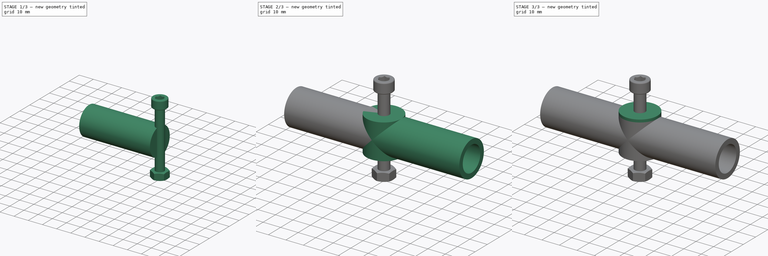
[diagram: build sequence overview — one tinted view per stage of 3, left to right]
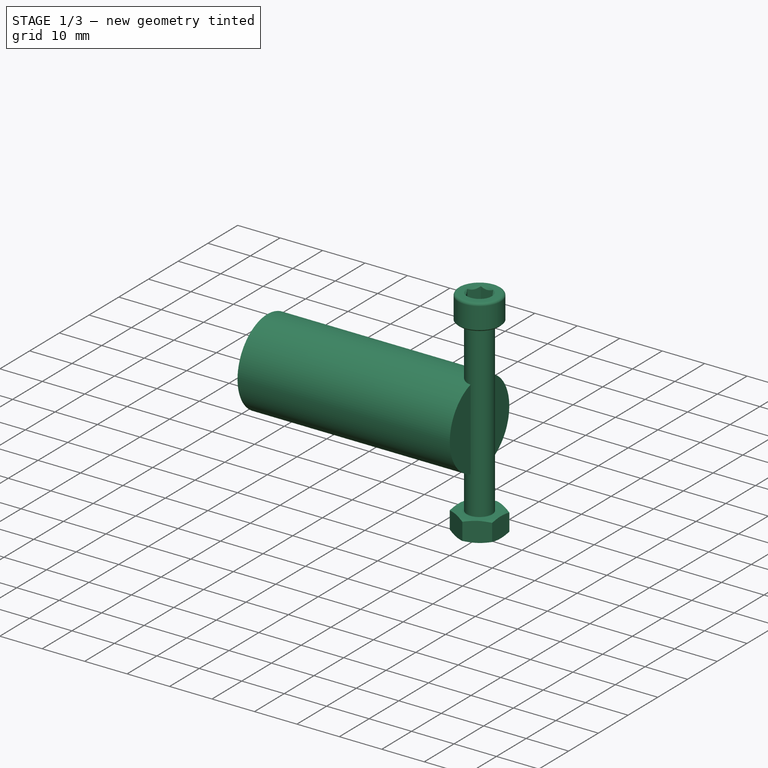
[diagram: stage 1 of 3 — iso view after this stage's code; geometry added in this stage tinted green]
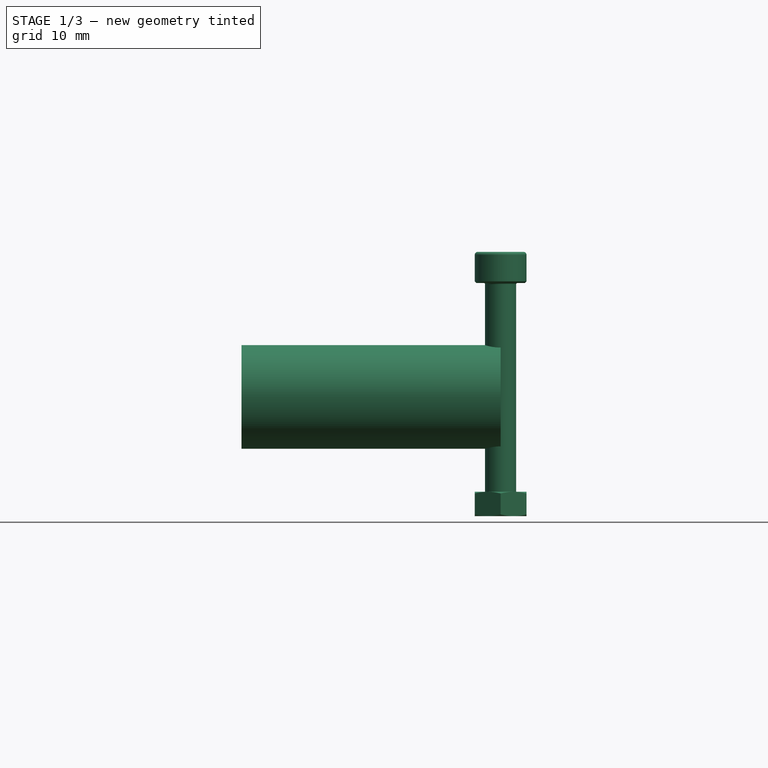
[diagram: stage 1 of 3 — front view after this stage's code; geometry added in this stage tinted green]
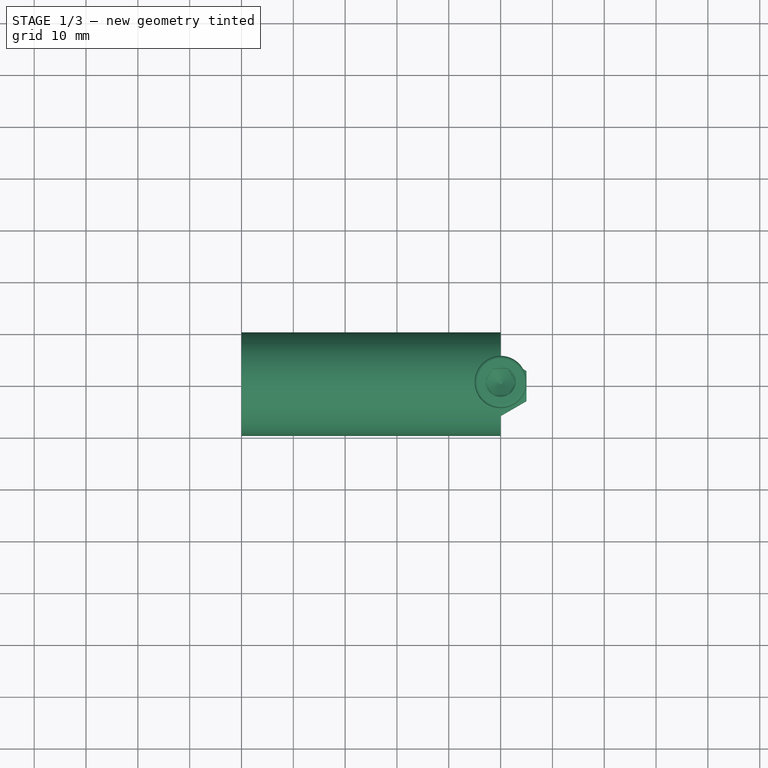
[diagram: stage 1 of 3 — top view after this stage's code; geometry added in this stage tinted green]
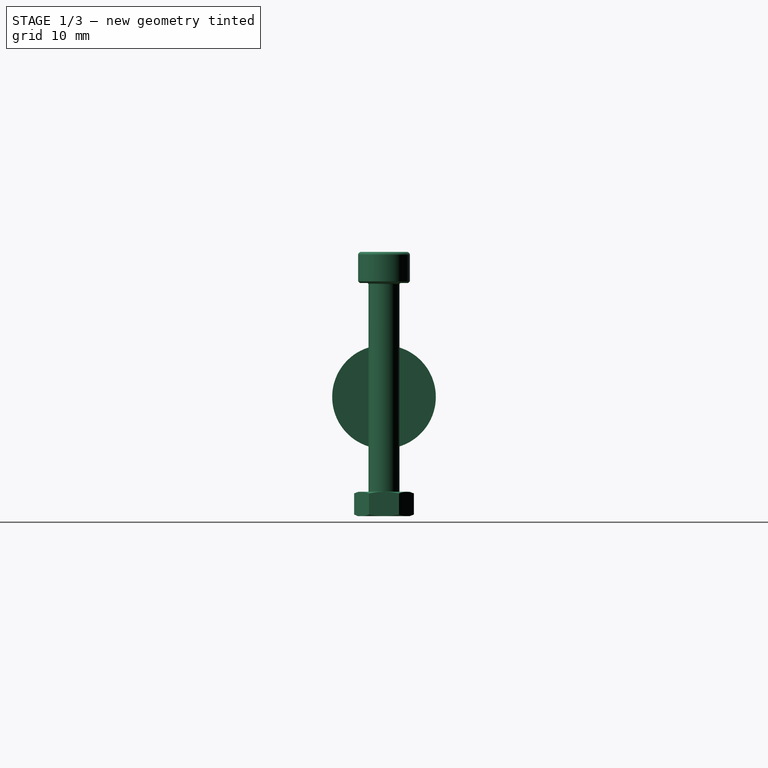
[diagram: stage 1 of 3 — right view after this stage's code; geometry added in this stage tinted green]
FCSTD DOCUMENT  (FreeCAD 0.20R)
Label: tancarville_endFCStd
License: All rights reserved
LicenseURL: http://en.wikipedia.org/wiki/All_rights_reserved
objects: Sketcher::SketchObject×3, App::DocumentObjectGroup×3, PartDesign::Pad×2, PartDesign::CoordinateSystem×2, App::Link×2, Part::FeaturePython×2, PartDesign::Revolution×1, PartDesign::Mirrored×1, PartDesign::Hole×1, PartDesign::Pocket×1, App::FeaturePython×1, PartDesign::Body×1, App::Part×1
note: 19 computed .brp shape members not serialized (recipe doc carries the construction recipe); baked Part::Feature solids carry a one-line shape summary decoded from their .brp

FEATURE [Sketcher::SketchObject] Sketch
  FullyConstrained = true
  MapMode = 5
  Support = -> [XY_Plane]
  sketch-geometry (6):
    g0: LineSegment StartX=-13.5 StartY=0 StartZ=0 EndX=-13.5 EndY=6.9 EndZ=0
    g1: LineSegment StartX=-13.5 StartY=6.9 StartZ=0 EndX=-50 EndY=7.2 EndZ=0
    g2: LineSegment StartX=-50 StartY=7.2 StartZ=0 EndX=-50 EndY=10 EndZ=0
    g3: LineSegment StartX=-50 StartY=10 StartZ=0 EndX=0 EndY=10 EndZ=0
    g4: LineSegment StartX=0 StartY=10 StartZ=0 EndX=0 EndY=0 EndZ=0
    g5: LineSegment StartX=0 StartY=0 StartZ=0 EndX=-13.5 EndY=0 EndZ=0
  constraints (17):
    c: PointOnObject(g0,g-1)
    c: Vertical(g0)
    c: Coincident(g0,g1)
    c: Coincident(g1,g2)
    c: Vertical(g2)
    c: Coincident(g2,g3)
    c: PointOnObject(g3,g-2)
    c: Horizontal(g3)
    c: Coincident(g3,g4)
    c: Coincident(g4,g-1)
    c: Coincident(g4,g5)
    c: Coincident(g5,g0)
    c: DistanceX(g3,g3) = 50
    c: DistanceY(g0,g1) = 7.2
    c: DistanceY(g0,g0) = 6.9
    c: DistanceY(g4,g4) = 10
    c: DistanceX(g5,g5) = 13.5
FEATURE [PartDesign::Revolution] Revolution
  Angle = 360
  Axis = (1,0,0)
  Base = (0,0,0)
  Profile = -> Sketch
  ReferenceAxis = -> Sketch [H_Axis]
FEATURE [PartDesign::CoordinateSystem] LCS_Origin
  AttacherType = Attacher::AttachEngine3D
  MapMode = 2
  Support = -> [X_Axis001]
FEATURE [App::DocumentObjectGroup] Constraints
FEATURE [App::FeaturePython] Variables  # WARN: FeaturePython — macro-defined, semantics opaque (R4)
  Type = App::PropertyContainer
FEATURE [App::DocumentObjectGroup] Configurations
FEATURE [PartDesign::CoordinateSystem] Local_CS
  AttacherType = Attacher::AttachEngine3D
  MapMode = 11
  Placement = pos=(0,0,11.5) rot=(0,0,1;1.5708rad)
  Support = -> [Pad001]
FEATURE [PartDesign::Body] Body
  Group = -> [Sketch,Revolution,Mirrored,Sketch001,Pad,Hole,Sketch002,Pocket,Pad001,Local_CS]
  Origin = -> Origin
  Tip = -> Pad001
FEATURE [App::DocumentObjectGroup] Parts
  Group = -> [Body]
FEATURE [App::Link] Body001  label="Bot_end"
  AttachedBy = #Local_CS
  AttachedTo = Parent Assembly#LCS_Origin
  LinkPlacement = pos=(0,0,-11.5) rot=(0,0,-1;1.5708rad)
  LinkedObject = -> Body
  Placement = pos=(0,0,-11.5) rot=(0,0,-1;1.5708rad)
  SolverId = Asm4EE
  expr: Placement = LCS_Origin.Placement * AttachmentOffset * Local_CS.Placement ^ -1
FEATURE [App::Link] Body002  label="Top_end"
  AttachedBy = #Local_CS
  AttachedTo = Body001#Local_CS
  AttachmentOffset = pos=(0,0,0) rot=(0.707107,0.707107,0;3.14159rad)
  LinkPlacement = pos=(-1.4e-15,0,11.5) rot=(0,1,0;3.14159rad)
  LinkedObject = -> Body
  Placement = pos=(-1.4e-15,0,11.5) rot=(0,1,0;3.14159rad)
  SolverId = Asm4EE
  expr: Placement = Body001.Placement * Local_CS.Placement * AttachmentOffset * Local_CS.Placement ^ -1
FEATURE [Part::FeaturePython] Screw  label="M6x45-Screw"  # Fasteners workbench fastener (typed FeaturePython)
  Placement = pos=(0,0,22) rot=(0,0,1;0rad)
  diameter = 7
  invert = false
  leftHanded = false
  length = 10
  lengthCustom = 45
  matchOuter = false
  offset = 0
  thread = false
  type = 47
FEATURE [Part::FeaturePython] Nut  label="M6-Nut"  # Fasteners workbench fastener (typed FeaturePython)
  Placement = pos=(0,0,-23) rot=(0,0,1;5.75959rad)
  diameter = 8
  invert = false
  leftHanded = false
  matchOuter = false
  offset = 0
  thread = false
  type = 24
FEATURE [App::Part] Assembly
  AssemblyType = Part::Link
  Group = -> [LCS_Origin,Constraints,Variables,Configurations,Body001,Body002,Screw,Nut]
  Origin = -> Origin001
  Type = Assembly
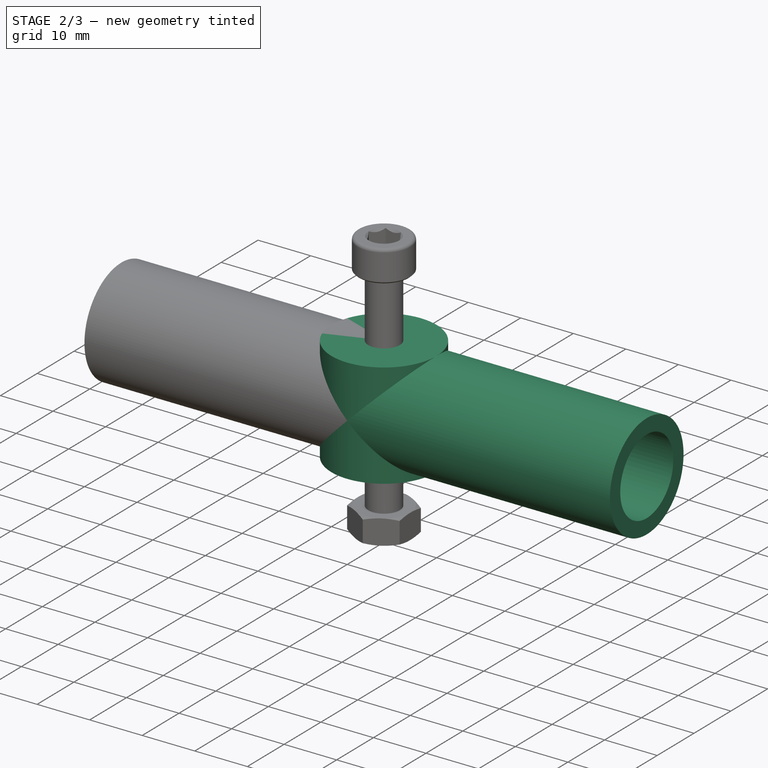
[diagram: stage 2 of 3 — iso view after this stage's code; geometry added in this stage tinted green]
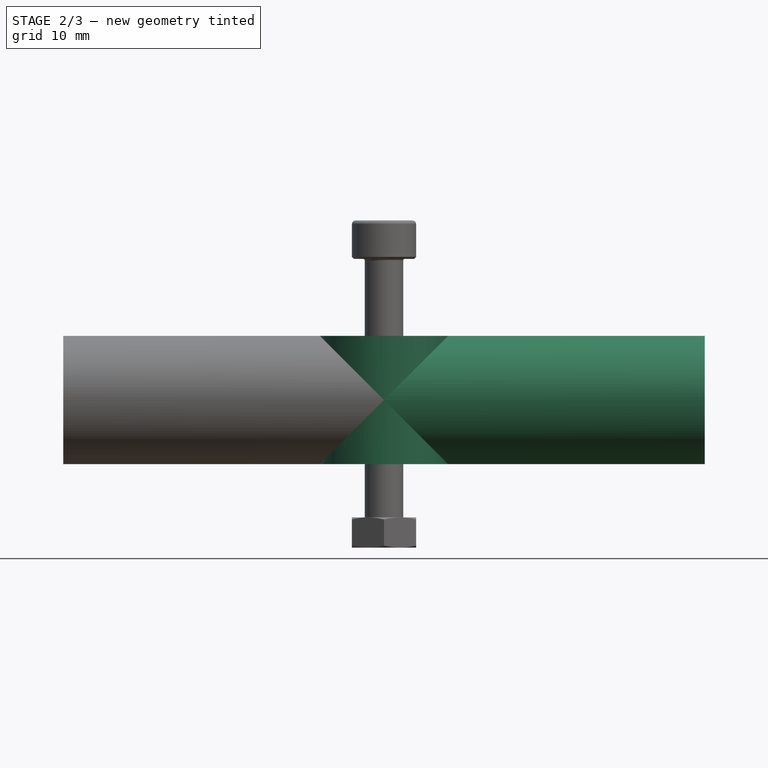
[diagram: stage 2 of 3 — front view after this stage's code; geometry added in this stage tinted green]
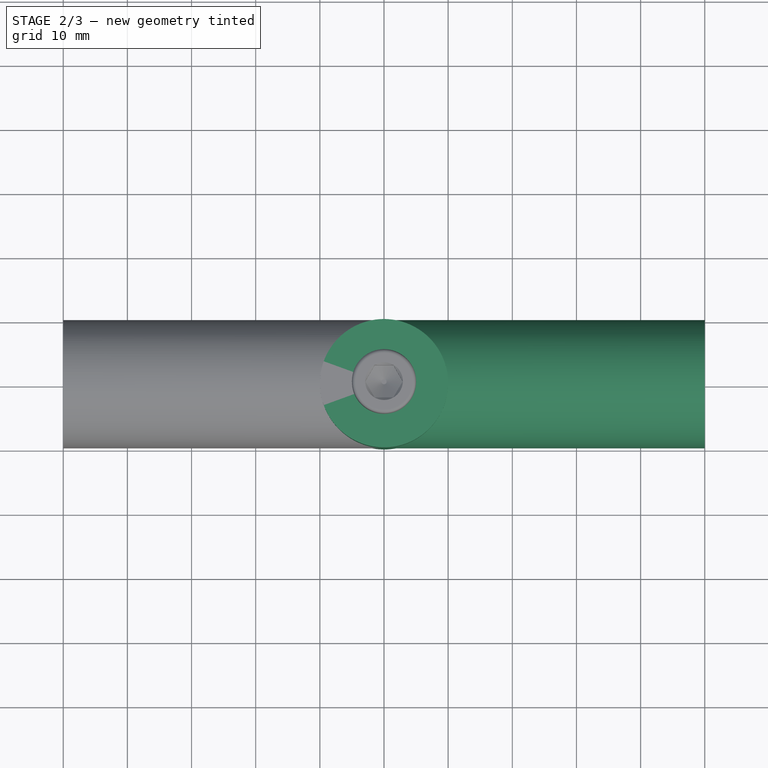
[diagram: stage 2 of 3 — top view after this stage's code; geometry added in this stage tinted green]
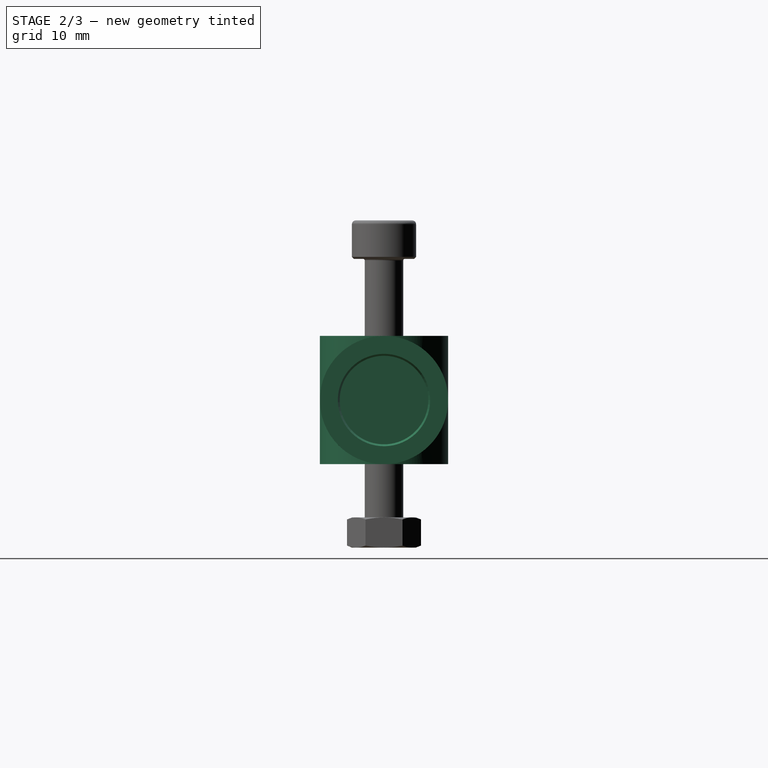
[diagram: stage 2 of 3 — right view after this stage's code; geometry added in this stage tinted green]
FEATURE [PartDesign::Mirrored] Mirrored
  BaseFeature = -> Revolution
  MirrorPlane = -> Sketch [V_Axis]
  Originals = -> [Revolution]
FEATURE [Sketcher::SketchObject] Sketch001
  FullyConstrained = true
  MapMode = 5
  Support = -> [XY_Plane]
  sketch-geometry (1):
    g0: Circle CenterX=0 CenterY=0 CenterZ=0 NormalX=0 NormalY=0 NormalZ=1 AngleXU=0 Radius=10
  constraints (2):
    c: Coincident(g0,g-1)
    c: Diameter(g0) = 20
FEATURE [PartDesign::Pad] Pad
  BaseFeature = -> Mirrored
  Direction = (0,0,1)
  Length = 20
  Length2 = 10
  Midplane = true
  Profile = -> Sketch001
  ReferenceAxis = -> Sketch001 [N_Axis]
  Type = 0
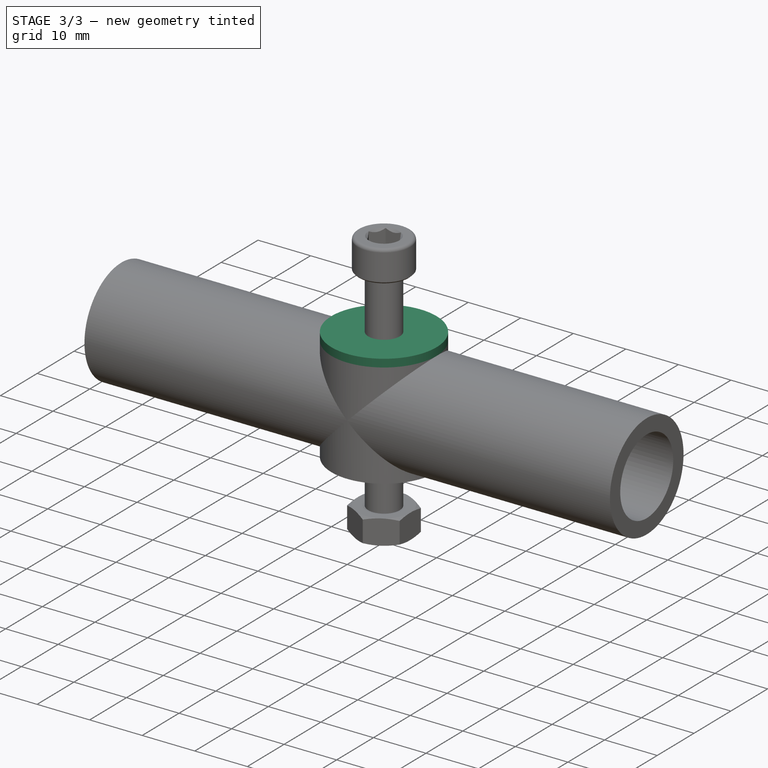
[diagram: stage 3 of 3 — iso view after this stage's code; geometry added in this stage tinted green]
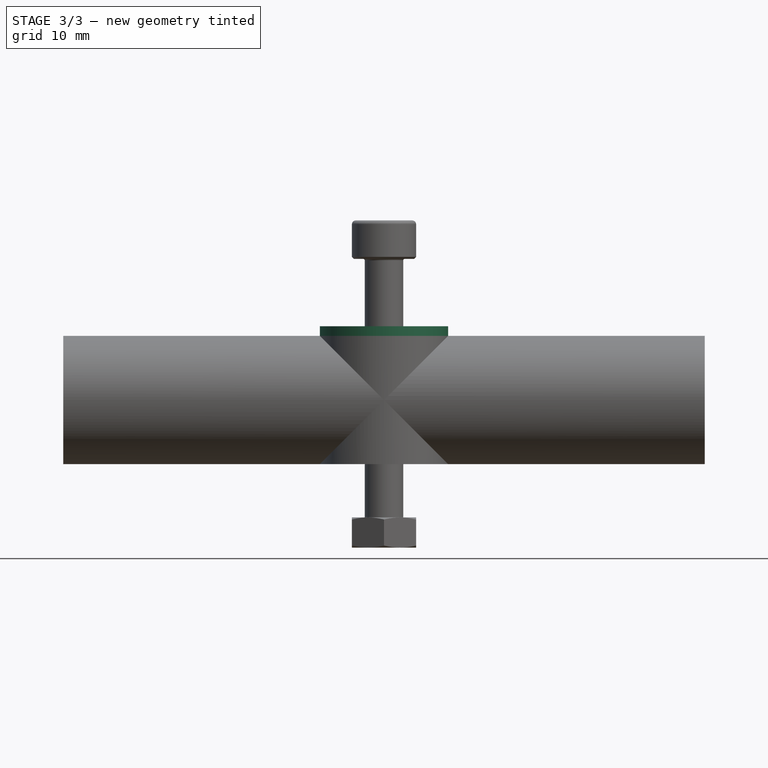
[diagram: stage 3 of 3 — front view after this stage's code; geometry added in this stage tinted green]
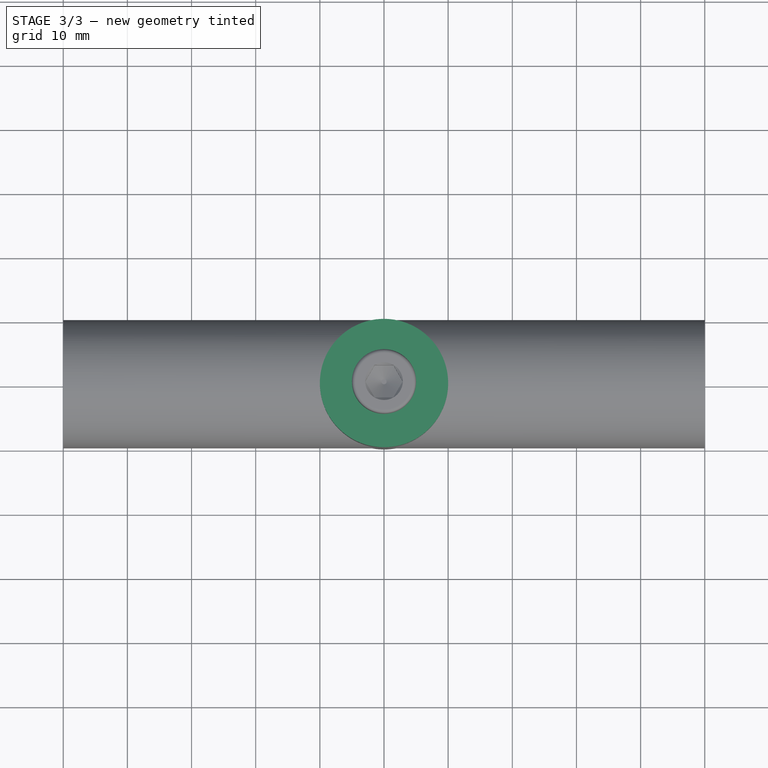
[diagram: stage 3 of 3 — top view after this stage's code; geometry added in this stage tinted green]
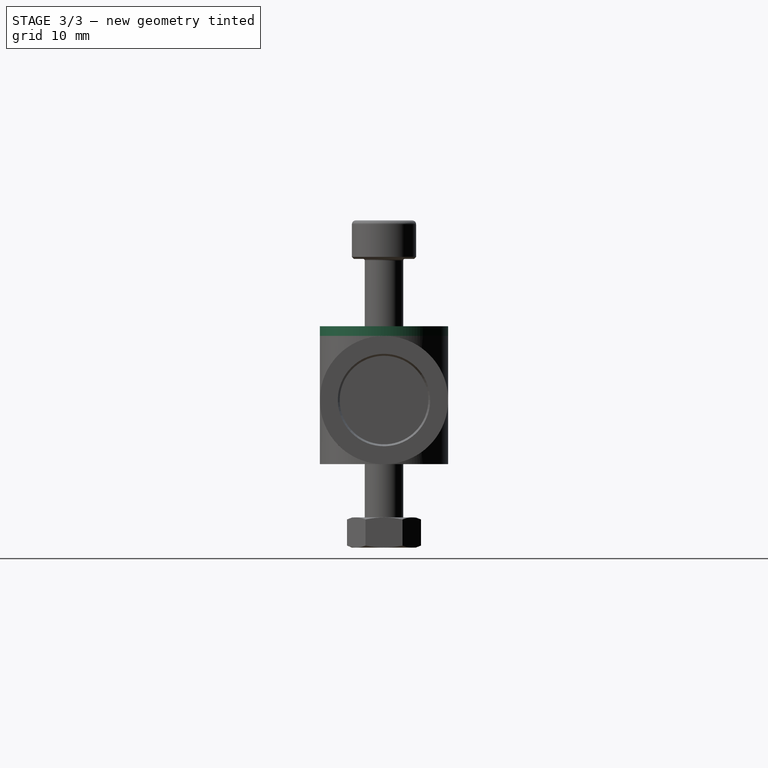
[diagram: stage 3 of 3 — right view after this stage's code; geometry added in this stage tinted green]
FEATURE [PartDesign::Hole] Hole
  BaseFeature = -> Pad
  CustomThreadClearance = 0
  Depth = 209.925
  DepthType = 1
  Diameter = 6
  DrillForDepth = false
  DrillPoint = 1
  DrillPointAngle = 118
  HoleCutCountersinkAngle = 90
  HoleCutCustomValues = false
  HoleCutDepth = 0
  HoleCutDiameter = 6.1
  HoleCutType = 0
  ModelThread = false
  Profile = -> Pad [Face11,Face10]
  Tapered = false
  TaperedAngle = 90
  ThreadClass = 0
  ThreadDepth = 209.925
  ThreadDepthType = 0
  ThreadDirection = 0
  ThreadFit = 0
  ThreadSize = 0
  ThreadType = 0
  Threaded = false
  UseCustomThreadClearance = false
FEATURE [Sketcher::SketchObject] Sketch002
  FullyConstrained = true
  MapMode = 5
  Placement = pos=(0,0,-10) rot=(1,0,0;3.14159rad)
  Support = -> [Hole]
  sketch-geometry (7):
    g0: LineSegment StartX=5.7735 StartY=0 StartZ=0 EndX=2.88675 EndY=5 EndZ=0
    g1: LineSegment StartX=2.88675 StartY=5 StartZ=0 EndX=-2.88675 EndY=5 EndZ=0
    g2: LineSegment StartX=-2.88675 StartY=5 StartZ=0 EndX=-5.7735 EndY=0 EndZ=0
    g3: LineSegment StartX=-5.7735 StartY=-1e-16 StartZ=0 EndX=-2.88675 EndY=-5 EndZ=0
    g4: LineSegment StartX=-2.88675 StartY=-5 StartZ=0 EndX=2.88675 EndY=-5 EndZ=0
    g5: LineSegment StartX=2.88675 StartY=-5 StartZ=0 EndX=5.7735 EndY=0 EndZ=0
    g6: Circle CenterX=0 CenterY=0 CenterZ=0 NormalX=0 NormalY=0 NormalZ=1 AngleXU=0 Radius=5.7735
  constraints (16):
    c: Coincident(g0,g1)
    c: Coincident(g1,g2)
    c: Coincident(g2,g3)
    c: Coincident(g3,g4)
    c: Coincident(g4,g5)
    c: Coincident(g5,g0)
    c: Equal(g0, g1-g5) x5
    c: PointOnObject(g0,g6)
    c: PointOnObject(g1,g6)
    c: PointOnObject(g2,g6)
    c: PointOnObject(g3,g6)
    c: PointOnObject(g4,g6)
    c: PointOnObject(g5,g6)
    c: Coincident(g6,g-1)
    c: PointOnObject(g5,g-1)
    c: Distance(g2,g0) = 10
FEATURE [PartDesign::Pocket] Pocket
  BaseFeature = -> Hole
  Direction = (0,0,1)
  Length = 3
  Length2 = 5
  Profile = -> Sketch002
  ReferenceAxis = -> Sketch002 [N_Axis]
  Type = 0
FEATURE [PartDesign::Pad] Pad001
  BaseFeature = -> Pocket
  Direction = (0,0,1)
  Length = 1.5
  Length2 = 10
  Profile = -> Pocket [Face11,Face10]
  Type = 0
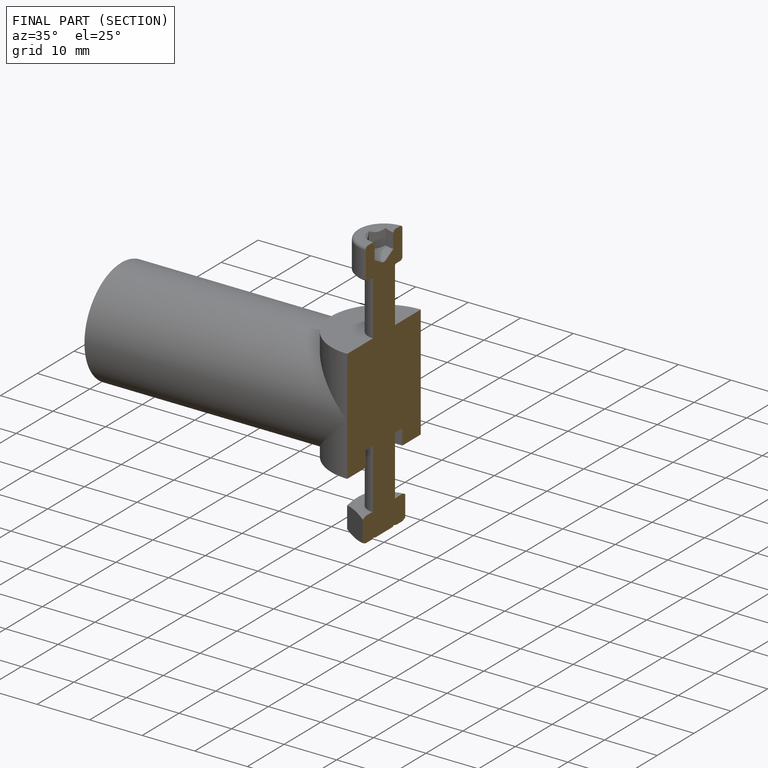
[diagram: finished part — half-section view (interior)]
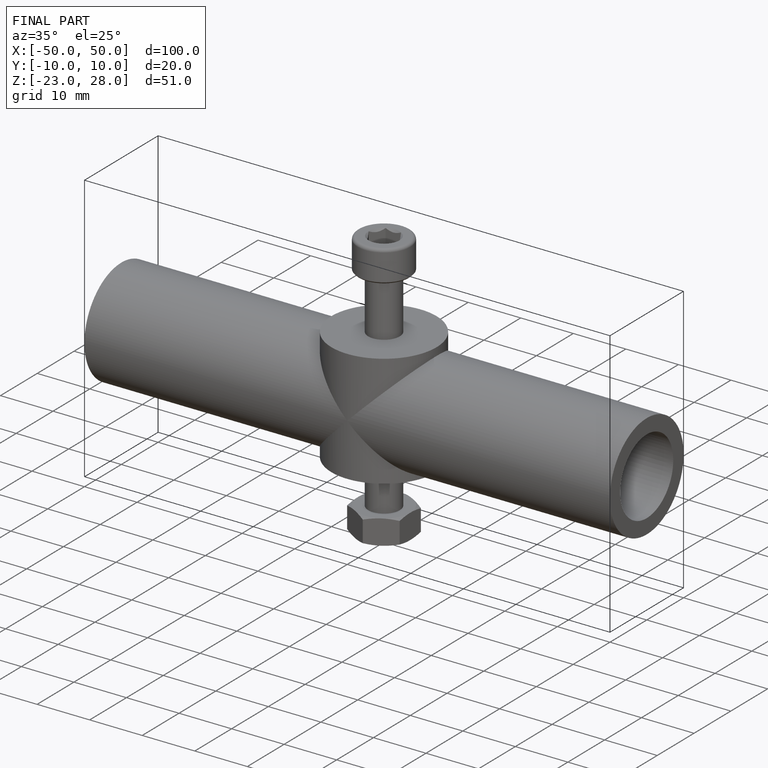
[diagram: finished part — iso view with bounding-box wireframe]
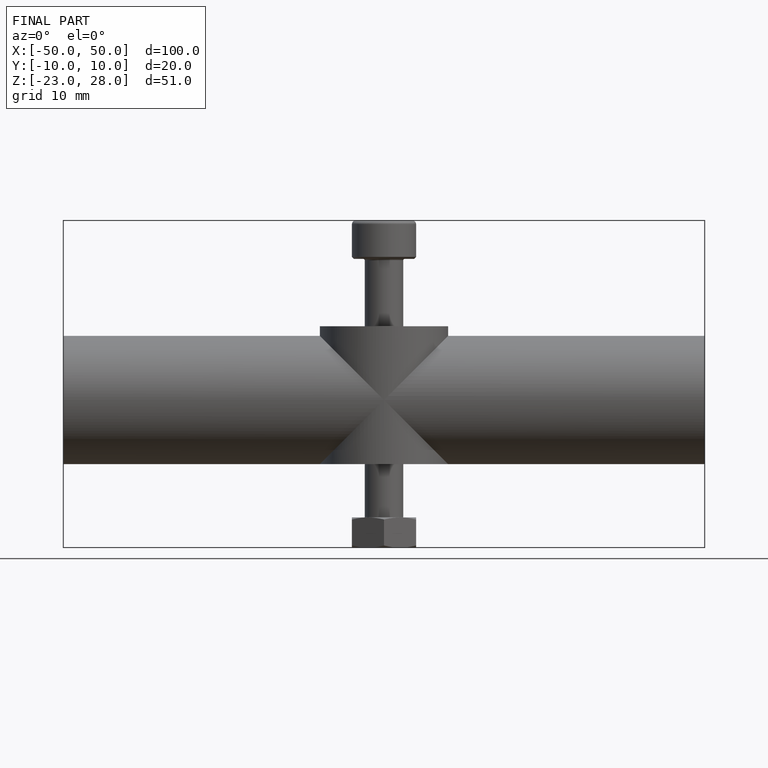
[diagram: finished part — front view with bounding-box wireframe]
